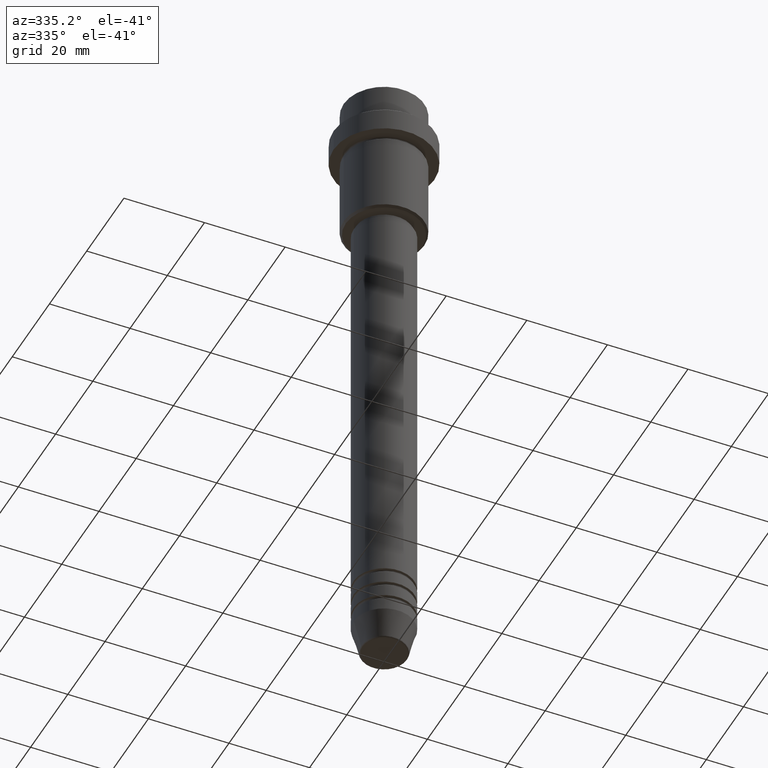
[diagram: clean part render]
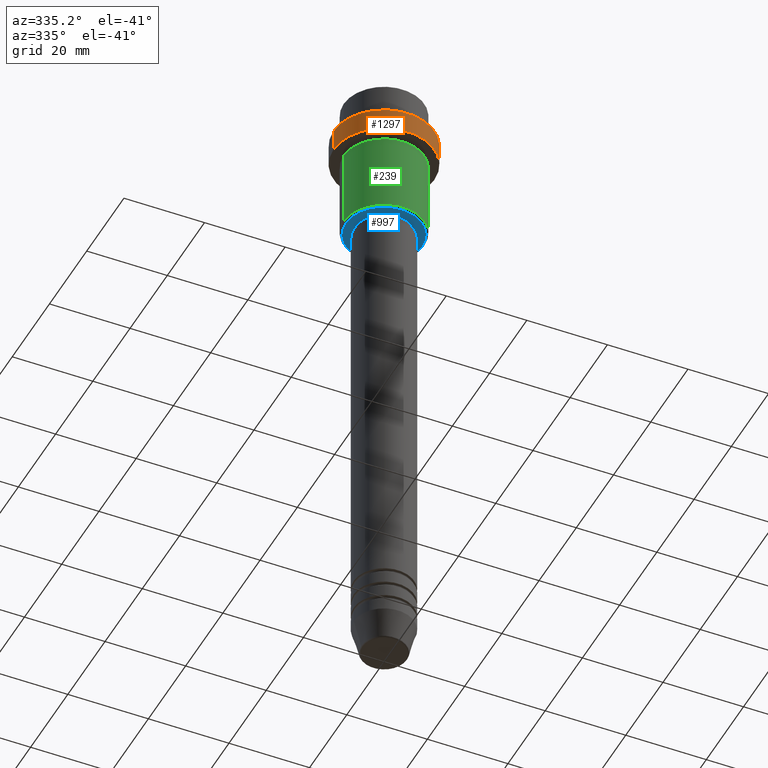
[diagram: same view with three faces highlighted in distinct colors, each labeled with its STEP entity id]
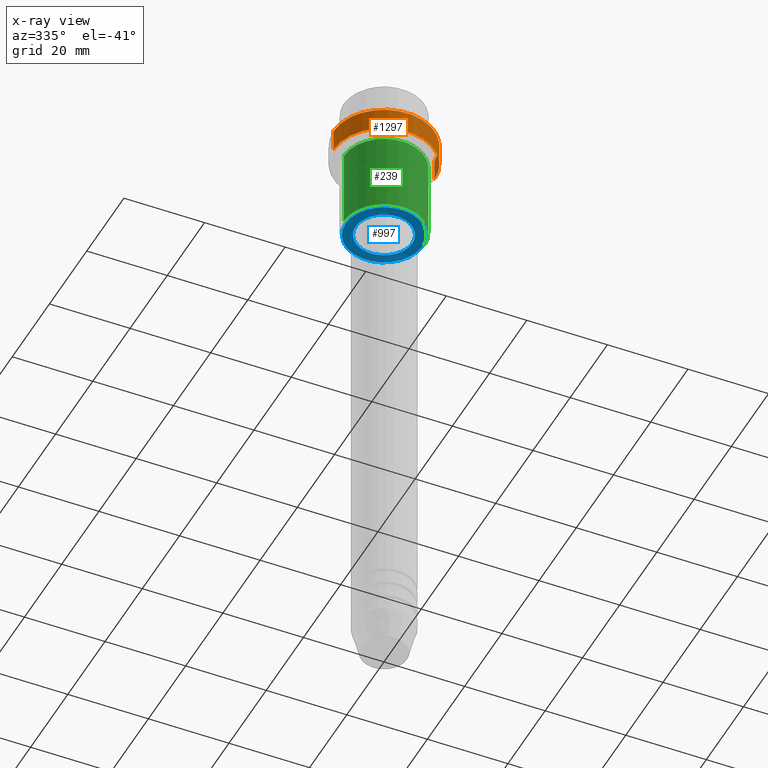
[diagram: x-ray of the same camera — body ghosted, the three highlighted faces saturated]
A machine part, auxiliary view with three faces highlighted in distinct colors.
The next image is the same camera in x-ray (body ghosted, the three faces saturated) — at least one of them is partly hidden behind the body in this view.
Their STEP definitions:

[orange] entity #1297 — the highlighted cylindrical surface (partial cylindrical patch) has radius 12.5 mm, axis along (-0, -0, 1).
#27 = CARTESIAN_POINT ( 'NONE',  ( 12.50000000000000000, 0.000000000000000000, -15.00000000000000000 ) ) ;
#28 = EDGE_CURVE ( 'NONE', #267, #220, #1112, .T. ) ;
#63 = FACE_OUTER_BOUND ( 'NONE', #1107, .T. ) ;
#64 = LINE ( 'NONE', #205, #754 ) ;
#97 = DIRECTION ( 'NONE',  ( -0.000000000000000000, -0.000000000000000000, 1.000000000000000000 ) ) ;
#100 = ORIENTED_EDGE ( 'NONE', *, *, #28, .T. ) ;
#152 = VECTOR ( 'NONE', #450, 1000.000000000000000 ) ;
#205 = CARTESIAN_POINT ( 'NONE',  ( 12.50000000000000000, 0.000000000000000000, 0.000000000000000000 ) ) ;
#220 = VERTEX_POINT ( 'NONE', #245 ) ;
#245 = CARTESIAN_POINT ( 'NONE',  ( -12.50000000000000000, 1.530808498934191521E-15, -9.499999999999991118 ) ) ;
#267 = VERTEX_POINT ( 'NONE', #1163 ) ;
#272 = AXIS2_PLACEMENT_3D ( 'NONE', #1266, #735, #1088 ) ;
#366 = AXIS2_PLACEMENT_3D ( 'NONE', #965, #417, #618 ) ;
#401 = CYLINDRICAL_SURFACE ( 'NONE', #272, 12.50000000000000000 ) ;
#417 = DIRECTION ( 'NONE',  ( -0.000000000000000000, -0.000000000000000000, 1.000000000000000000 ) ) ;
#450 = DIRECTION ( 'NONE',  ( -0.000000000000000000, -0.000000000000000000, 1.000000000000000000 ) ) ;
#467 = CARTESIAN_POINT ( 'NONE',  ( -12.50000000000000000, 1.530808498934191521E-15, 0.000000000000000000 ) ) ;
#469 = EDGE_CURVE ( 'NONE', #788, #220, #1084, .T. ) ;
#618 = DIRECTION ( 'NONE',  ( 1.000000000000000000, 0.000000000000000000, 0.000000000000000000 ) ) ;
#728 = EDGE_CURVE ( 'NONE', #1103, #267, #64, .T. ) ;
#735 = DIRECTION ( 'NONE',  ( -0.000000000000000000, -0.000000000000000000, 1.000000000000000000 ) ) ;
#754 = VECTOR ( 'NONE', #97, 1000.000000000000000 ) ;
#760 = ORIENTED_EDGE ( 'NONE', *, *, #1228, .T. ) ;
#788 = VERTEX_POINT ( 'NONE', #961 ) ;
#815 = AXIS2_PLACEMENT_3D ( 'NONE', #987, #971, #1402 ) ;
#961 = CARTESIAN_POINT ( 'NONE',  ( -12.50000000000000000, 1.530808498934191521E-15, -15.00000000000000000 ) ) ;
#965 = CARTESIAN_POINT ( 'NONE',  ( 0.000000000000000000, 0.000000000000000000, -15.00000000000000000 ) ) ;
#971 = DIRECTION ( 'NONE',  ( 0.000000000000000000, 0.000000000000000000, -1.000000000000000000 ) ) ;
#987 = CARTESIAN_POINT ( 'NONE',  ( 0.000000000000000000, 0.000000000000000000, -9.499999999999991118 ) ) ;
#1084 = LINE ( 'NONE', #467, #152 ) ;
#1087 = ORIENTED_EDGE ( 'NONE', *, *, #469, .F. ) ;
#1088 = DIRECTION ( 'NONE',  ( 1.000000000000000000, 0.000000000000000000, 0.000000000000000000 ) ) ;
#1103 = VERTEX_POINT ( 'NONE', #27 ) ;
#1107 = EDGE_LOOP ( 'NONE', ( #1087, #760, #1159, #100 ) ) ;
#1112 = CIRCLE ( 'NONE', #815, 12.50000000000000000 ) ;
#1120 = CIRCLE ( 'NONE', #366, 12.50000000000000000 ) ;
#1159 = ORIENTED_EDGE ( 'NONE', *, *, #728, .T. ) ;
#1163 = CARTESIAN_POINT ( 'NONE',  ( 12.50000000000000000, 0.000000000000000000, -9.499999999999991118 ) ) ;
#1228 = EDGE_CURVE ( 'NONE', #788, #1103, #1120, .T. ) ;
#1266 = CARTESIAN_POINT ( 'NONE',  ( 0.000000000000000000, 0.000000000000000000, 0.000000000000000000 ) ) ;
#1297 = ADVANCED_FACE ( 'NONE', ( #63 ), #401, .T. ) ;
#1402 = DIRECTION ( 'NONE',  ( 1.000000000000000000, 0.000000000000000000, 0.000000000000000000 ) ) ;

[blue] entity #997 — the highlighted planar face has unit normal (0, 0, -1).
#5 = DIRECTION ( 'NONE',  ( 0.000000000000000000, 0.000000000000000000, -1.000000000000000000 ) ) ;
#11 = DIRECTION ( 'NONE',  ( -1.000000000000000000, 0.000000000000000000, -0.000000000000000000 ) ) ;
#26 = VERTEX_POINT ( 'NONE', #1176 ) ;
#31 = ORIENTED_EDGE ( 'NONE', *, *, #1179, .T. ) ;
#42 = CIRCLE ( 'NONE', #844, 6.999999999999993783 ) ;
#56 = DIRECTION ( 'NONE',  ( -1.000000000000000000, 0.000000000000000000, 0.000000000000000000 ) ) ;
#87 = DIRECTION ( 'NONE',  ( -0.000000000000000000, -0.000000000000000000, 1.000000000000000000 ) ) ;
#116 = DIRECTION ( 'NONE',  ( -0.000000000000000000, -0.000000000000000000, 1.000000000000000000 ) ) ;
#155 = CIRCLE ( 'NONE', #430, 9.499999999999994671 ) ;
#171 = CARTESIAN_POINT ( 'NONE',  ( 9.499999999999994671, 0.000000000000000000, -35.99999999999999289 ) ) ;
#193 = VERTEX_POINT ( 'NONE', #1233 ) ;
#204 = VERTEX_POINT ( 'NONE', #171 ) ;
#266 = CIRCLE ( 'NONE', #1115, 6.999999999999993783 ) ;
#282 = CARTESIAN_POINT ( 'NONE',  ( 0.000000000000000000, 0.000000000000000000, -35.99999999999999289 ) ) ;
#328 = FACE_OUTER_BOUND ( 'NONE', #1229, .T. ) ;
#419 = CARTESIAN_POINT ( 'NONE',  ( 0.000000000000000000, 0.000000000000000000, -35.99999999999999289 ) ) ;
#430 = AXIS2_PLACEMENT_3D ( 'NONE', #487, #1348, #56 ) ;
#448 = CARTESIAN_POINT ( 'NONE',  ( 0.000000000000000000, 10.00000000000000000, -35.99999999999999289 ) ) ;
#487 = CARTESIAN_POINT ( 'NONE',  ( 0.000000000000000000, 0.000000000000000000, -35.99999999999999289 ) ) ;
#520 = EDGE_CURVE ( 'NONE', #26, #946, #266, .T. ) ;
#556 = ORIENTED_EDGE ( 'NONE', *, *, #623, .T. ) ;
#623 = EDGE_CURVE ( 'NONE', #204, #193, #155, .T. ) ;
#631 = AXIS2_PLACEMENT_3D ( 'NONE', #419, #1073, #1051 ) ;
#646 = ORIENTED_EDGE ( 'NONE', *, *, #698, .T. ) ;
#698 = EDGE_CURVE ( 'NONE', #193, #204, #1409, .T. ) ;
#701 = DIRECTION ( 'NONE',  ( 1.000000000000000000, 0.000000000000000000, 0.000000000000000000 ) ) ;
#725 = EDGE_LOOP ( 'NONE', ( #879, #31 ) ) ;
#844 = AXIS2_PLACEMENT_3D ( 'NONE', #282, #87, #1390 ) ;
#879 = ORIENTED_EDGE ( 'NONE', *, *, #520, .T. ) ;
#946 = VERTEX_POINT ( 'NONE', #981 ) ;
#981 = CARTESIAN_POINT ( 'NONE',  ( -6.999999999999993783, 8.572527594031465301E-16, -35.99999999999999289 ) ) ;
#984 = AXIS2_PLACEMENT_3D ( 'NONE', #448, #5, #11 ) ;
#995 = FACE_BOUND ( 'NONE', #725, .T. ) ;
#997 = ADVANCED_FACE ( 'NONE', ( #328, #995 ), #1299, .T. ) ;
#1051 = DIRECTION ( 'NONE',  ( -1.000000000000000000, 0.000000000000000000, 0.000000000000000000 ) ) ;
#1073 = DIRECTION ( 'NONE',  ( 0.000000000000000000, 0.000000000000000000, -1.000000000000000000 ) ) ;
#1115 = AXIS2_PLACEMENT_3D ( 'NONE', #1301, #116, #701 ) ;
#1176 = CARTESIAN_POINT ( 'NONE',  ( 6.999999999999993783, 0.000000000000000000, -35.99999999999999289 ) ) ;
#1179 = EDGE_CURVE ( 'NONE', #946, #26, #42, .T. ) ;
#1229 = EDGE_LOOP ( 'NONE', ( #556, #646 ) ) ;
#1233 = CARTESIAN_POINT ( 'NONE',  ( -9.499999999999994671, 1.194030629168669075E-15, -35.99999999999999289 ) ) ;
#1299 = PLANE ( 'NONE',  #984 ) ;
#1301 = CARTESIAN_POINT ( 'NONE',  ( 0.000000000000000000, 0.000000000000000000, -35.99999999999999289 ) ) ;
#1348 = DIRECTION ( 'NONE',  ( 0.000000000000000000, 0.000000000000000000, -1.000000000000000000 ) ) ;
#1390 = DIRECTION ( 'NONE',  ( 1.000000000000000000, 0.000000000000000000, 0.000000000000000000 ) ) ;
#1409 = CIRCLE ( 'NONE', #631, 9.499999999999994671 ) ;

[green] entity #239 — the highlighted cylindrical surface (partial cylindrical patch) has radius 10 mm, axis along (-0, -0, 1).
#15 = CARTESIAN_POINT ( 'NONE',  ( -9.999999999999998224, 1.224646799147353059E-15, -16.00000000000000000 ) ) ;
#129 = DIRECTION ( 'NONE',  ( -0.000000000000000000, -0.000000000000000000, 1.000000000000000000 ) ) ;
#157 = CARTESIAN_POINT ( 'NONE',  ( -9.999999999999998224, 1.224646799147353059E-15, 0.000000000000000000 ) ) ;
#239 = ADVANCED_FACE ( 'NONE', ( #1373 ), #611, .T. ) ;
#320 = ORIENTED_EDGE ( 'NONE', *, *, #628, .F. ) ;
#336 = CARTESIAN_POINT ( 'NONE',  ( 9.999999999999998224, 0.000000000000000000, 0.000000000000000000 ) ) ;
#353 = ORIENTED_EDGE ( 'NONE', *, *, #393, .T. ) ;
#358 = CARTESIAN_POINT ( 'NONE',  ( 0.000000000000000000, 0.000000000000000000, -16.00000000000000000 ) ) ;
#377 = EDGE_CURVE ( 'NONE', #435, #625, #586, .T. ) ;
#391 = CARTESIAN_POINT ( 'NONE',  ( 9.999999999999998224, 0.000000000000000000, -16.00000000000000000 ) ) ;
#393 = EDGE_CURVE ( 'NONE', #625, #535, #460, .T. ) ;
#399 = DIRECTION ( 'NONE',  ( 1.000000000000000000, 0.000000000000000000, 0.000000000000000000 ) ) ;
#433 = ORIENTED_EDGE ( 'NONE', *, *, #1129, .F. ) ;
#435 = VERTEX_POINT ( 'NONE', #672 ) ;
#460 = LINE ( 'NONE', #336, #627 ) ;
#471 = DIRECTION ( 'NONE',  ( -0.000000000000000000, -0.000000000000000000, 1.000000000000000000 ) ) ;
#479 = CIRCLE ( 'NONE', #777, 9.999999999999998224 ) ;
#512 = CARTESIAN_POINT ( 'NONE',  ( 0.000000000000000000, 0.000000000000000000, -35.49999999999997868 ) ) ;
#535 = VERTEX_POINT ( 'NONE', #391 ) ;
#564 = AXIS2_PLACEMENT_3D ( 'NONE', #512, #1217, #1323 ) ;
#586 = CIRCLE ( 'NONE', #564, 9.999999999999998224 ) ;
#611 = CYLINDRICAL_SURFACE ( 'NONE', #681, 9.999999999999998224 ) ;
#625 = VERTEX_POINT ( 'NONE', #926 ) ;
#627 = VECTOR ( 'NONE', #129, 1000.000000000000000 ) ;
#628 = EDGE_CURVE ( 'NONE', #435, #1365, #805, .T. ) ;
#672 = CARTESIAN_POINT ( 'NONE',  ( -9.999999999999998224, 1.224646799147353059E-15, -35.49999999999997868 ) ) ;
#681 = AXIS2_PLACEMENT_3D ( 'NONE', #945, #975, #399 ) ;
#777 = AXIS2_PLACEMENT_3D ( 'NONE', #358, #471, #795 ) ;
#795 = DIRECTION ( 'NONE',  ( 1.000000000000000000, 0.000000000000000000, 0.000000000000000000 ) ) ;
#805 = LINE ( 'NONE', #157, #1175 ) ;
#926 = CARTESIAN_POINT ( 'NONE',  ( 9.999999999999998224, 0.000000000000000000, -35.49999999999997868 ) ) ;
#945 = CARTESIAN_POINT ( 'NONE',  ( 0.000000000000000000, 0.000000000000000000, 0.000000000000000000 ) ) ;
#975 = DIRECTION ( 'NONE',  ( -0.000000000000000000, -0.000000000000000000, 1.000000000000000000 ) ) ;
#1129 = EDGE_CURVE ( 'NONE', #1365, #535, #479, .T. ) ;
#1175 = VECTOR ( 'NONE', #1231, 1000.000000000000000 ) ;
#1217 = DIRECTION ( 'NONE',  ( -0.000000000000000000, -0.000000000000000000, 1.000000000000000000 ) ) ;
#1231 = DIRECTION ( 'NONE',  ( -0.000000000000000000, -0.000000000000000000, 1.000000000000000000 ) ) ;
#1323 = DIRECTION ( 'NONE',  ( -1.000000000000000000, 0.000000000000000000, 0.000000000000000000 ) ) ;
#1345 = EDGE_LOOP ( 'NONE', ( #320, #1352, #353, #433 ) ) ;
#1352 = ORIENTED_EDGE ( 'NONE', *, *, #377, .T. ) ;
#1365 = VERTEX_POINT ( 'NONE', #15 ) ;
#1373 = FACE_OUTER_BOUND ( 'NONE', #1345, .T. ) ;